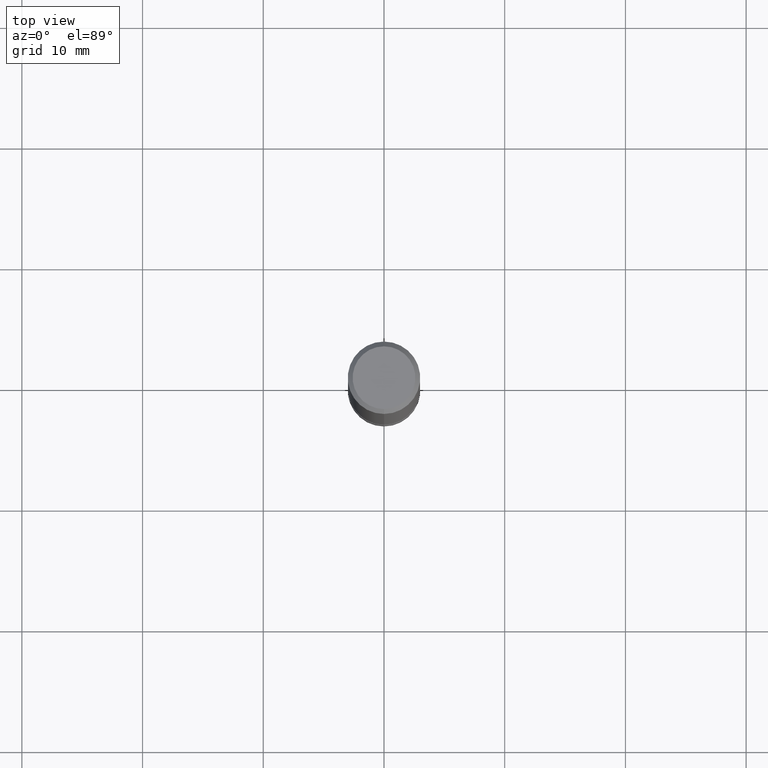
[diagram: clean part render]
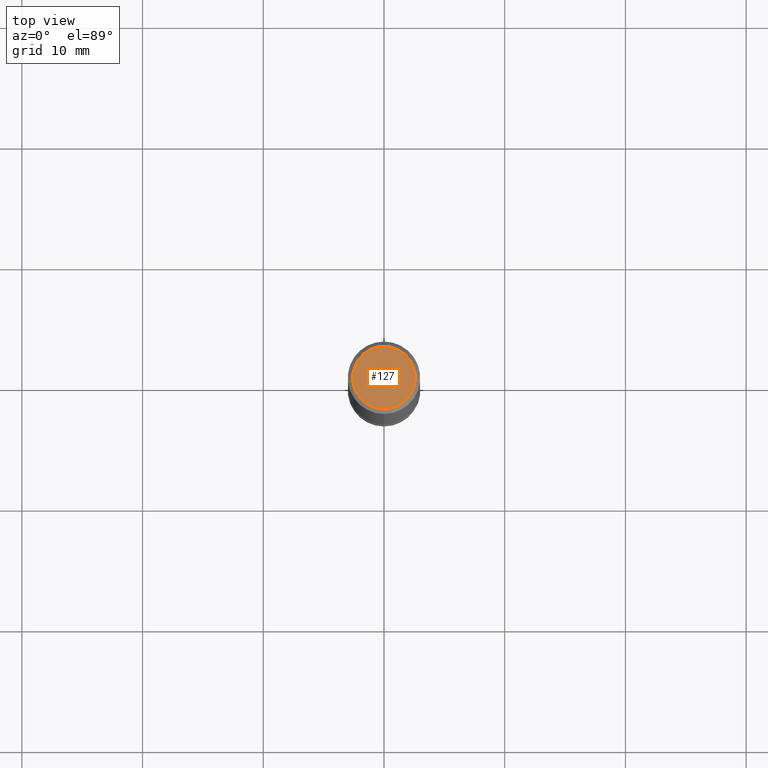
[diagram: same view with one face highlighted and labeled with its STEP entity id]
A machine part, top view. The second image highlights one B-rep face of the part: STEP entity #127.
In plain terms, the highlighted planar face has unit normal (-0, 0, 1).
Its self-contained STEP definition (entity closure, byte-faithful):
#127=ADVANCED_FACE('',(#316),#317,.T.);
#133=EDGE_CURVE('',#277,#191,#323,.T.);
#191=VERTEX_POINT('',#389);
#257=EDGE_CURVE('',#191,#277,#465,.T.);
#277=VERTEX_POINT('',#487);
#316=FACE_OUTER_BOUND('',#521,.T.);
#317=PLANE('',#522);
#323=CIRCLE('',#531,2.6);
#389=CARTESIAN_POINT('',(3.18397651993818E-016,-2.6,0.0));
#465=CIRCLE('',#711,2.6);
#487=CARTESIAN_POINT('',(0.0,2.6,0.0));
#521=EDGE_LOOP('',(#762,#763));
#522=AXIS2_PLACEMENT_3D('',#764,#765,#766);
#531=AXIS2_PLACEMENT_3D('',#768,#769,#770);
#711=AXIS2_PLACEMENT_3D('',#960,#961,#962);
#762=ORIENTED_EDGE('',*,*,#133,.F.);
#763=ORIENTED_EDGE('',*,*,#257,.F.);
#764=CARTESIAN_POINT('',(0.0,1.3,0.0));
#765=DIRECTION('',(-0.0,0.0,1.0));
#766=DIRECTION('',(0.0,-1.0,0.0));
#768=CARTESIAN_POINT('',(0.0,0.0,0.0));
#769=DIRECTION('',(0.0,0.0,-1.0));
#770=DIRECTION('',(0.0,1.0,0.0));
#960=CARTESIAN_POINT('',(0.0,0.0,0.0));
#961=DIRECTION('',(0.0,0.0,-1.0));
#962=DIRECTION('',(0.0,1.0,0.0));